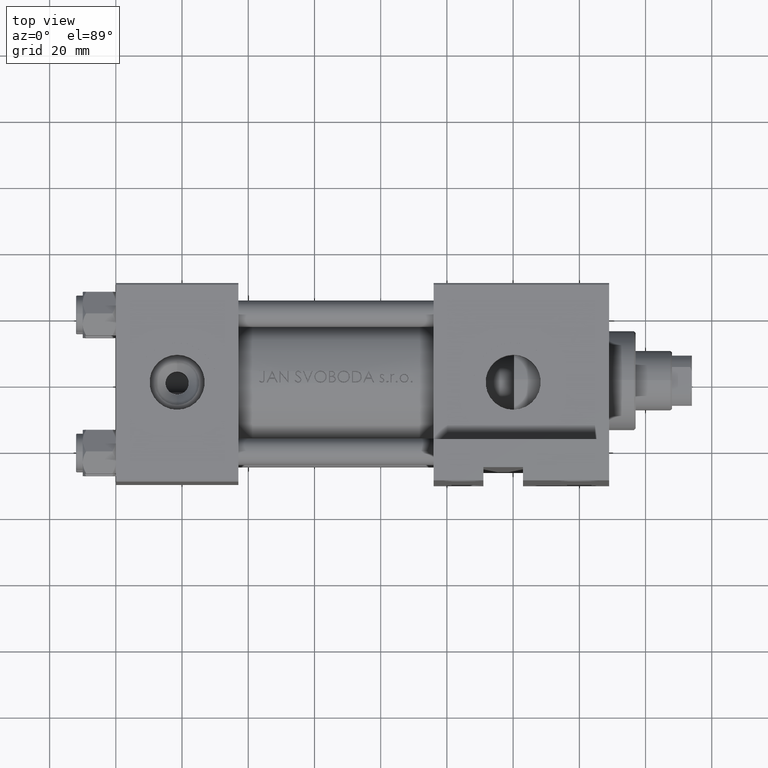
[diagram: clean part render]
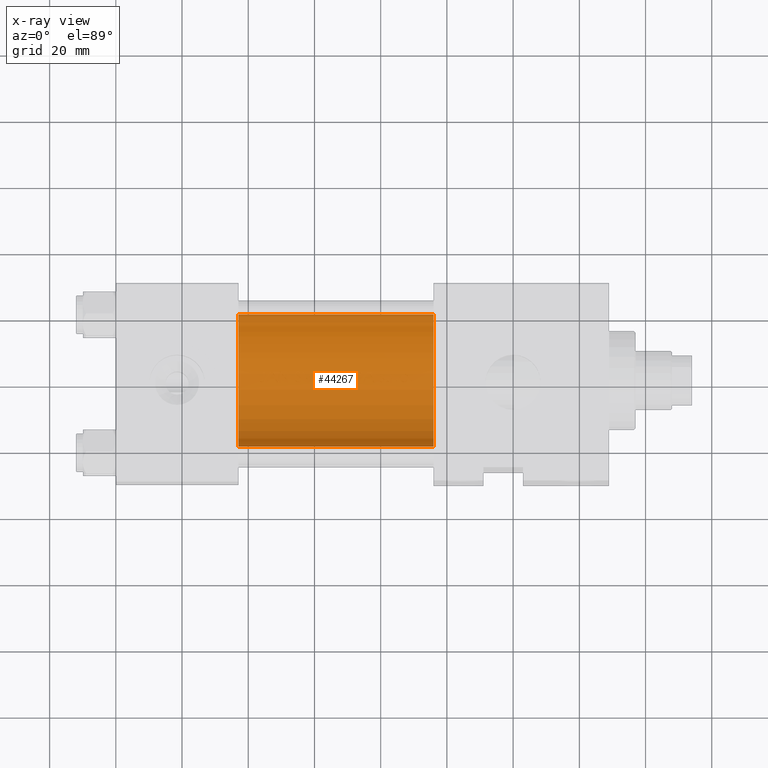
[diagram: x-ray — body ghosted, one internal face saturated and labeled with its STEP entity id]
A machine part, top view, then the same camera in x-ray: the body is ghosted and one INTERNAL B-rep face — a face not visible from any outside direction — is saturated and labeled: STEP entity #44267.
In plain terms, the highlighted cylindrical surface (partial cylindrical patch) has radius 20 mm, axis along (-1, -0, 0).
Its self-contained STEP definition (entity closure, byte-faithful):
#668 = EDGE_CURVE ( 'NONE', #33899, #2922, #36249, .T. ) ;
#2922 = VERTEX_POINT ( 'NONE', #9074 ) ;
#4020 = CARTESIAN_POINT ( 'NONE',  ( 37.00000000000000000, -1.224646799147354686E-16, 1.000000000000000888 ) ) ;
#6894 = AXIS2_PLACEMENT_3D ( 'NONE', #11349, #45844, #7653 ) ;
#7653 = DIRECTION ( 'NONE',  ( 0.000000000000000000, 0.000000000000000000, 1.000000000000000000 ) ) ;
#8195 = ORIENTED_EDGE ( 'NONE', *, *, #26207, .T. ) ;
#8218 = DIRECTION ( 'NONE',  ( 1.000000000000000000, 0.000000000000000000, 0.000000000000000000 ) ) ;
#9074 = CARTESIAN_POINT ( 'NONE',  ( 96.00000000000000000, -1.224646799147354686E-16, 21.00000000000000000 ) ) ;
#10467 = DIRECTION ( 'NONE',  ( -1.000000000000000000, -0.000000000000000000, -0.000000000000000000 ) ) ;
#11349 = CARTESIAN_POINT ( 'NONE',  ( 96.00000000000000000, -1.224646799147354686E-16, 1.000000000000000888 ) ) ;
#11686 = DIRECTION ( 'NONE',  ( 0.000000000000000000, 0.000000000000000000, -1.000000000000000000 ) ) ;
#12357 = DIRECTION ( 'NONE',  ( 0.000000000000000000, 0.000000000000000000, -1.000000000000000000 ) ) ;
#12498 = CARTESIAN_POINT ( 'NONE',  ( 37.00000000000000000, -1.224646799147354686E-16, 21.00000000000000000 ) ) ;
#14095 = VERTEX_POINT ( 'NONE', #12498 ) ;
#14346 = LINE ( 'NONE', #44662, #25185 ) ;
#16419 = EDGE_CURVE ( 'NONE', #33899, #37179, #17393, .T. ) ;
#16562 = CARTESIAN_POINT ( 'NONE',  ( 96.00000000000000000, 2.326828918379970970E-15, -19.00000000000000000 ) ) ;
#17393 = LINE ( 'NONE', #32426, #42845 ) ;
#18792 = DIRECTION ( 'NONE',  ( -1.000000000000000000, -0.000000000000000000, -0.000000000000000000 ) ) ;
#18825 = ORIENTED_EDGE ( 'NONE', *, *, #41647, .F. ) ;
#19696 = CARTESIAN_POINT ( 'NONE',  ( 37.00000000000000000, 2.326828918379970970E-15, -19.00000000000000000 ) ) ;
#21049 = AXIS2_PLACEMENT_3D ( 'NONE', #4020, #8218, #11686 ) ;
#25185 = VECTOR ( 'NONE', #18792, 1000.000000000000000 ) ;
#26207 = EDGE_CURVE ( 'NONE', #2922, #14095, #14346, .T. ) ;
#27383 = DIRECTION ( 'NONE',  ( 1.000000000000000000, 0.000000000000000000, 0.000000000000000000 ) ) ;
#28876 = ORIENTED_EDGE ( 'NONE', *, *, #668, .T. ) ;
#30079 = CYLINDRICAL_SURFACE ( 'NONE', #6894, 20.00000000000000000 ) ;
#30506 = EDGE_LOOP ( 'NONE', ( #37314, #28876, #8195, #18825 ) ) ;
#30812 = FACE_OUTER_BOUND ( 'NONE', #30506, .T. ) ;
#32426 = CARTESIAN_POINT ( 'NONE',  ( 96.00000000000000000, 2.326828918379970970E-15, -19.00000000000000000 ) ) ;
#33899 = VERTEX_POINT ( 'NONE', #16562 ) ;
#36249 = CIRCLE ( 'NONE', #41738, 20.00000000000000000 ) ;
#37179 = VERTEX_POINT ( 'NONE', #19696 ) ;
#37314 = ORIENTED_EDGE ( 'NONE', *, *, #16419, .F. ) ;
#41647 = EDGE_CURVE ( 'NONE', #37179, #14095, #45471, .T. ) ;
#41738 = AXIS2_PLACEMENT_3D ( 'NONE', #46116, #27383, #12357 ) ;
#42845 = VECTOR ( 'NONE', #10467, 1000.000000000000000 ) ;
#44267 = ADVANCED_FACE ( 'NONE', ( #30812 ), #30079, .F. ) ;
#44662 = CARTESIAN_POINT ( 'NONE',  ( 96.00000000000000000, -1.224646799147354686E-16, 21.00000000000000000 ) ) ;
#45471 = CIRCLE ( 'NONE', #21049, 20.00000000000000000 ) ;
#45844 = DIRECTION ( 'NONE',  ( -1.000000000000000000, -0.000000000000000000, -0.000000000000000000 ) ) ;
#46116 = CARTESIAN_POINT ( 'NONE',  ( 96.00000000000000000, -1.224646799147354686E-16, 1.000000000000000888 ) ) ;